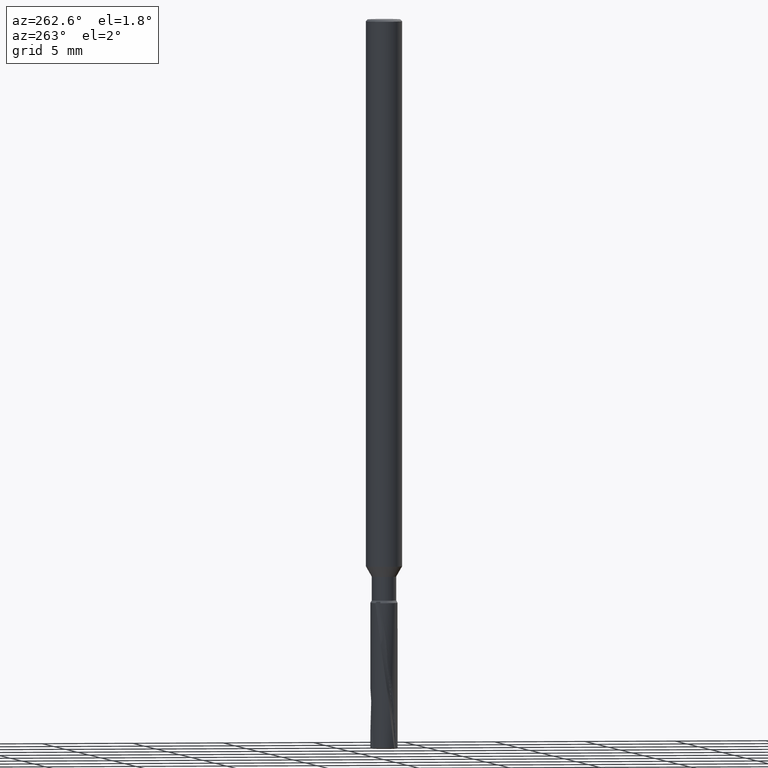
[diagram: clean part render]
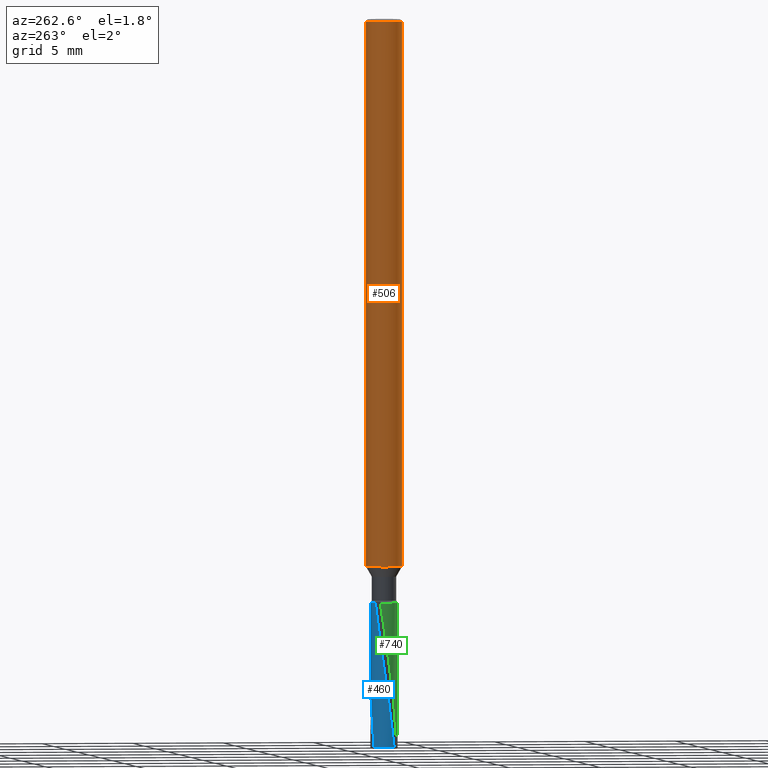
[diagram: same view with three faces highlighted in distinct colors, each labeled with its STEP entity id]
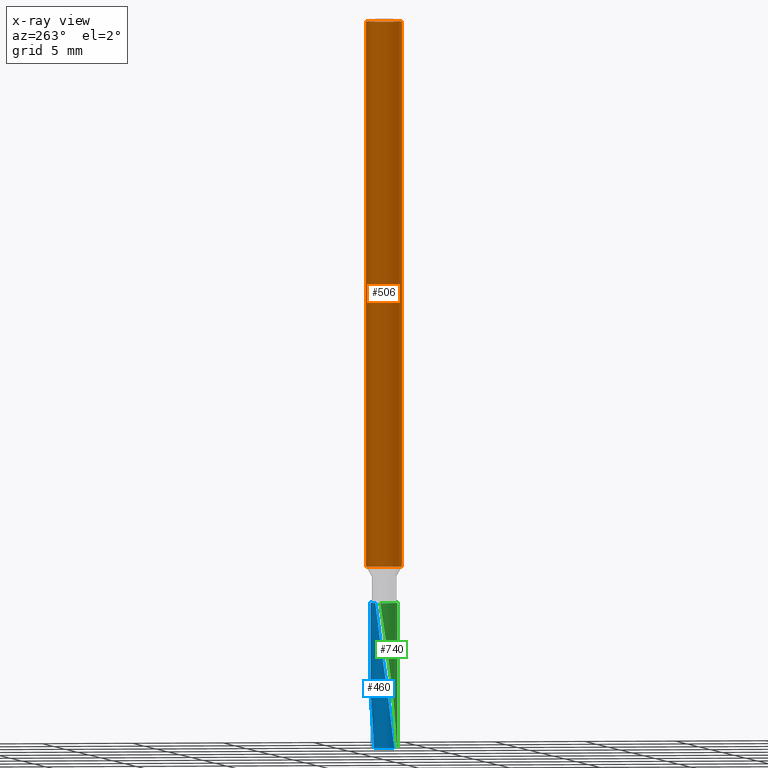
[diagram: x-ray of the same camera — body ghosted, the three highlighted faces saturated]
A machine part, auxiliary view with three faces highlighted in distinct colors.
The next image is the same camera in x-ray (body ghosted, the three faces saturated) — at least one of them is partly hidden behind the body in this view.
Their STEP definitions:

[orange] entity #506 — the highlighted cylindrical surface (edge-blend (fillet) strip) has radius 1 mm, axis along (-0, -0, 1).
#506=ADVANCED_FACE('',(#1311),#1312,.T.);
#538=VERTEX_POINT('',#1348);
#562=EDGE_CURVE('',#948,#778,#1374,.T.);
#642=EDGE_CURVE('',#538,#964,#1459,.T.);
#772=EDGE_CURVE('',#538,#948,#1601,.T.);
#778=VERTEX_POINT('',#1607);
#948=VERTEX_POINT('',#1792);
#964=VERTEX_POINT('',#1808);
#982=EDGE_CURVE('',#778,#964,#1830,.T.);
#1311=FACE_OUTER_BOUND('',#2507,.T.);
#1312=CYLINDRICAL_SURFACE('',#2508,1.0);
#1348=CARTESIAN_POINT('',(1.22460635382238E-016,-1.0,-30.0));
#1374=CIRCLE('',#2709,1.0);
#1459=CIRCLE('',#3170,1.0);
#1601=LINE('',#3689,#3690);
#1607=CARTESIAN_POINT('',(0.0,1.0,-0.100000000000001));
#1792=CARTESIAN_POINT('',(1.22460635382238E-016,-1.0,-0.100000000000001));
#1808=CARTESIAN_POINT('',(0.0,1.0,-30.0));
#1830=LINE('',#5029,#5030);
#2507=EDGE_LOOP('',(#6470,#6471,#6472,#6473));
#2508=AXIS2_PLACEMENT_3D('',#6474,#6475,#6476);
#2709=AXIS2_PLACEMENT_3D('',#6537,#6538,#6539);
#3170=AXIS2_PLACEMENT_3D('',#6613,#6614,#6615);
#3689=CARTESIAN_POINT('',(1.22460635382238E-016,-1.0,-15.05));
#3690=VECTOR('',#6775,1.0);
#5029=CARTESIAN_POINT('',(-1.22460635382238E-016,1.0,-15.05));
#5030=VECTOR('',#7005,1.0);
#6470=ORIENTED_EDGE('',*,*,#982,.T.);
#6471=ORIENTED_EDGE('',*,*,#642,.F.);
#6472=ORIENTED_EDGE('',*,*,#772,.T.);
#6473=ORIENTED_EDGE('',*,*,#562,.T.);
#6474=CARTESIAN_POINT('',(0.0,0.0,-15.05));
#6475=DIRECTION('',(-0.0,-0.0,1.0));
#6476=DIRECTION('',(0.0,1.0,0.0));
#6537=CARTESIAN_POINT('',(0.0,0.0,-0.100000000000001));
#6538=DIRECTION('',(0.0,0.0,-1.0));
#6539=DIRECTION('',(0.0,1.0,0.0));
#6613=CARTESIAN_POINT('',(0.0,0.0,-30.0));
#6614=DIRECTION('',(0.0,0.0,-1.0));
#6615=DIRECTION('',(0.0,1.0,0.0));
#6775=DIRECTION('',(-0.0,-0.0,1.0));
#7005=DIRECTION('',(0.0,0.0,-1.0));

[blue] entity #460 — the highlighted cylindrical surface (edge-blend (fillet) strip) has radius 0.75 mm, axis along (-0, -0, 1).
#460=ADVANCED_FACE('',(#1260),#1261,.T.);
#542=VERTEX_POINT('',#1352);
#606=VERTEX_POINT('',#1423);
#612=EDGE_CURVE('',#606,#666,#1429,.T.);
#630=VERTEX_POINT('',#1447);
#666=VERTEX_POINT('',#1485);
#944=EDGE_CURVE('',#542,#606,#1788,.T.);
#986=VERTEX_POINT('',#1834);
#1088=EDGE_CURVE('',#542,#630,#1946,.T.);
#1128=EDGE_CURVE('',#986,#630,#1991,.T.);
#1162=EDGE_CURVE('',#666,#986,#2027,.T.);
#1260=FACE_OUTER_BOUND('',#2287,.T.);
#1261=CYLINDRICAL_SURFACE('',#2288,0.75);
#1352=CARTESIAN_POINT('',(-0.56892957126261,-0.488691255234777,-39.925));
#1423=CARTESIAN_POINT('',(-0.516503033796683,0.543805678601118,-32.0));
#1429=CIRCLE('',#3030,0.75);
#1447=CARTESIAN_POINT('',(-0.435286454702541,0.61075830109176,-39.925));
#1485=CARTESIAN_POINT('',(-8.91600905325034E-017,0.75,-32.0));
#1788=B_SPLINE_CURVE_WITH_KNOTS('',3,(#4680,#4681,#4682,#4683,#4684,#4685,#4686,#4687,#4688,#4689,#4690,#4691,#4692,#4693,#4694,#4695),.UNSPECIFIED.,.F.,.F.,(4,2,2,2,2,2,2,4),(0.0,1.1201654244499,1.68234568276379,3.93333449691463,5.07927398892543,6.45954254706862,7.81062353789828,8.50698632800382),.UNSPECIFIED.);
#1834=CARTESIAN_POINT('',(-1.27846772113138E-016,0.75,-36.7157875568921));
#1946=CIRCLE('',#5589,0.75);
#1991=B_SPLINE_CURVE_WITH_KNOTS('',3,(#5704,#5705,#5706,#5707,#5708,#5709,#5710,#5711,#5712,#5713,#5714,#5715,#5716,#5717),.UNSPECIFIED.,.F.,.F.,(4,2,2,2,2,2,4),(0.0,0.576190026562851,1.46914405996578,3.29388078473572,5.79535644209188,6.41702304664912,8.27366812073367),.UNSPECIFIED.);
#2027=LINE('',#5896,#5897);
#2287=EDGE_LOOP('',(#6411,#6412,#6413,#6414,#6415));
#2288=AXIS2_PLACEMENT_3D('',#6416,#6417,#6418);
#3030=AXIS2_PLACEMENT_3D('',#6608,#6609,#6610);
#4680=CARTESIAN_POINT('',(-0.568929571262609,-0.488691255234777,-39.925));
#4681=CARTESIAN_POINT('',(-0.60365403670412,-0.448265372789897,-39.5554341565374));
#4682=CARTESIAN_POINT('',(-0.63398240502619,-0.404242947504845,-39.1850455292405));
#4683=CARTESIAN_POINT('',(-0.672156922228327,-0.333799226817966,-38.6304284459216));
#4684=CARTESIAN_POINT('',(-0.683639460887903,-0.309607846336325,-38.4463473240552));
#4685=CARTESIAN_POINT('',(-0.734622168573526,-0.18539797774088,-37.520345984562));
#4686=CARTESIAN_POINT('',(-0.753538369534079,-0.0785335452051468,-36.7837387215075));
#4687=CARTESIAN_POINT('',(-0.747377257706259,0.0830928327865541,-35.6655300667659));
#4688=CARTESIAN_POINT('',(-0.739363796858133,0.137126330181017,-35.2931153916679));
#4689=CARTESIAN_POINT('',(-0.709001811195628,0.253208064338187,-34.4656167468866));
#4690=CARTESIAN_POINT('',(-0.684955002950058,0.311918080898953,-34.0131266323485));
#4691=CARTESIAN_POINT('',(-0.624085166121449,0.42048590929699,-33.1591541658066));
#4692=CARTESIAN_POINT('',(-0.595772486105305,0.458219045494561,-32.8828243767435));
#4693=CARTESIAN_POINT('',(-0.546667850774513,0.514095667565736,-32.3562278595083));
#4694=CARTESIAN_POINT('',(-0.530642817884175,0.53037580527356,-32.1790093839607));
#4695=CARTESIAN_POINT('',(-0.516503033796683,0.543805678601118,-32.0));
#5589=AXIS2_PLACEMENT_3D('',#7099,#7100,#7101);
#5704=CARTESIAN_POINT('',(0.599960349432995,0.450052862570875,-32.0));
#5705=CARTESIAN_POINT('',(0.577794078934096,0.479602465517909,-32.1884775976877));
#5706=CARTESIAN_POINT('',(0.55537366431081,0.504957884625535,-32.3767859878527));
#5707=CARTESIAN_POINT('',(0.501003835265862,0.560098615580444,-32.8627400102003));
#5708=CARTESIAN_POINT('',(0.481830398684769,0.575990412536986,-33.0813570256982));
#5709=CARTESIAN_POINT('',(0.390098219087908,0.64519451999562,-33.9353677552111));
#5710=CARTESIAN_POINT('',(0.321948370941487,0.682586512597269,-34.4195475977096));
#5711=CARTESIAN_POINT('',(0.13322402751235,0.747025751583922,-35.8022130580687));
#5712=CARTESIAN_POINT('',(0.010546236887855,0.759457110901654,-36.6370115425194));
#5713=CARTESIAN_POINT('',(-0.137640085666006,0.737864308317737,-37.6684701306976));
#5714=CARTESIAN_POINT('',(-0.166765730438557,0.731824672339978,-37.8732932096482));
#5715=CARTESIAN_POINT('',(-0.280823659614288,0.701049826287731,-38.6919452682959));
#5716=CARTESIAN_POINT('',(-0.362252794731769,0.662809272590307,-39.3101530692377));
#5717=CARTESIAN_POINT('',(-0.435286454702541,0.61075830109176,-39.925));
#5896=CARTESIAN_POINT('',(-8.91600905325034E-017,0.75,-35.9625));
#5897=VECTOR('',#7181,1.0);
#6411=ORIENTED_EDGE('',*,*,#1162,.T.);
#6412=ORIENTED_EDGE('',*,*,#1128,.T.);
#6413=ORIENTED_EDGE('',*,*,#1088,.F.);
#6414=ORIENTED_EDGE('',*,*,#944,.T.);
#6415=ORIENTED_EDGE('',*,*,#612,.T.);
#6416=CARTESIAN_POINT('',(0.0,0.0,-35.9625));
#6417=DIRECTION('',(-0.0,-0.0,1.0));
#6418=DIRECTION('',(0.0,1.0,0.0));
#6608=CARTESIAN_POINT('',(0.0,0.0,-32.0));
#6609=DIRECTION('',(0.0,0.0,-1.0));
#6610=DIRECTION('',(0.0,1.0,0.0));
#7099=CARTESIAN_POINT('',(0.0,0.0,-39.925));
#7100=DIRECTION('',(0.0,0.0,-1.0));
#7101=DIRECTION('',(0.0,1.0,0.0));
#7181=DIRECTION('',(0.0,0.0,-1.0));

[green] entity #740 — the highlighted cylindrical surface (edge-blend (fillet) strip) has radius 0.75 mm, axis along (-0, -0, 1).
#524=VERTEX_POINT('',#1330);
#620=VERTEX_POINT('',#1437);
#646=EDGE_CURVE('',#692,#1182,#1464,.T.);
#650=EDGE_CURVE('',#620,#524,#1468,.T.);
#692=VERTEX_POINT('',#1512);
#740=ADVANCED_FACE('',(#1566),#1567,.T.);
#750=EDGE_CURVE('',#1182,#1016,#1577,.T.);
#766=EDGE_CURVE('',#620,#692,#1595,.T.);
#994=EDGE_CURVE('',#1016,#524,#1843,.T.);
#1016=VERTEX_POINT('',#1868);
#1182=VERTEX_POINT('',#2050);
#1330=CARTESIAN_POINT('',(-0.311288976966418,-0.682348278241545,-39.925));
#1437=CARTESIAN_POINT('',(9.92507719425328E-017,-0.75,-39.925));
#1464=B_SPLINE_CURVE_WITH_KNOTS('',3,(#3176,#3177,#3178,#3179,#3180,#3181,#3182,#3183,#3184,#3185,#3186,#3187,#3188,#3189,#3190,#3191),.UNSPECIFIED.,.F.,.F.,(4,2,2,2,2,2,2,4),(0.0,1.12016542444995,1.68066767132435,3.93167945623522,5.07817079740086,6.45896242235855,7.81053607627252,8.50797889938519),.UNSPECIFIED.);
#1468=CIRCLE('',#3198,0.75);
#1512=CARTESIAN_POINT('',(3.27182660161452E-010,-0.750000000000002,-33.5169074756923));
#1566=FACE_OUTER_BOUND('',#3602,.T.);
#1567=CYLINDRICAL_SURFACE('',#3603,0.75);
#1577=CIRCLE('',#3641,0.75);
#1595=LINE('',#3664,#3665);
#1843=B_SPLINE_CURVE_WITH_KNOTS('',3,(#5105,#5106,#5107,#5108,#5109,#5110,#5111,#5112,#5113,#5114,#5115,#5116,#5117,#5118),.UNSPECIFIED.,.F.,.F.,(4,2,2,2,2,2,4),(0.0,0.57619002627342,1.46914404403776,3.29388081788099,5.79535654896441,6.41702317207409,8.27366830158786),.UNSPECIFIED.);
#1868=CARTESIAN_POINT('',(-0.689737386748782,0.294554472586923,-32.0));
#2050=CARTESIAN_POINT('',(-0.212698015492462,-0.719207587700219,-32.0));
#3176=CARTESIAN_POINT('',(0.707683827271927,-0.24836183406022,-39.925));
#3177=CARTESIAN_POINT('',(0.690036218825012,-0.298647044487845,-39.5554341565374));
#3178=CARTESIAN_POINT('',(0.667075864352989,-0.346923394552614,-39.1850455292405));
#3179=CARTESIAN_POINT('',(0.62519888209939,-0.415137250523762,-38.6309816341396));
#3180=CARTESIAN_POINT('',(0.610038899838243,-0.437113456745812,-38.44744901907));
#3181=CARTESIAN_POINT('',(0.528043994105853,-0.543333981260784,-37.5220002613702));
#3182=CARTESIAN_POINT('',(0.444976838402386,-0.613174659449189,-36.7853962096245));
#3183=CARTESIAN_POINT('',(0.30192535792203,-0.688709705723679,-35.6670065710903));
#3184=CARTESIAN_POINT('',(0.251104980068545,-0.708809999167706,-35.2944018140368));
#3185=CARTESIAN_POINT('',(0.135351517342005,-0.740595127098685,-34.4665673655119));
#3186=CARTESIAN_POINT('',(0.0724636099529948,-0.749137460635037,-34.0139451511428));
#3187=CARTESIAN_POINT('',(-0.0520188876643985,-0.750723794787667,-33.159743603483));
#3188=CARTESIAN_POINT('',(-0.0988652874118552,-0.745074049844993,-32.8833167387578));
#3189=CARTESIAN_POINT('',(-0.171841155350514,-0.730487691251127,-32.3565871720683));
#3190=CARTESIAN_POINT('',(-0.193978391470459,-0.724743717947366,-32.1791924138013));
#3191=CARTESIAN_POINT('',(-0.212698015492462,-0.719207587700218,-32.0));
#3198=AXIS2_PLACEMENT_3D('',#6626,#6627,#6628);
#3602=EDGE_LOOP('',(#6731,#6732,#6733,#6734,#6735));
#3603=AXIS2_PLACEMENT_3D('',#6736,#6737,#6738);
#3641=AXIS2_PLACEMENT_3D('',#6742,#6743,#6744);
#3664=CARTESIAN_POINT('',(9.16534412081626E-017,-0.75,-35.9625));
#3665=VECTOR('',#6771,1.0);
#5105=CARTESIAN_POINT('',(-0.689737386748782,0.294554472586924,-32.0));
#5106=CARTESIAN_POINT('',(-0.70424495831592,0.260583117771268,-32.188477597593));
#5107=CARTESIAN_POINT('',(-0.714993188060992,0.22848875965178,-32.3767859873387));
#5108=CARTESIAN_POINT('',(-0.73556154717473,0.15383274157849,-32.862740006071));
#5109=CARTESIAN_POINT('',(-0.739737528666478,0.129282160394809,-33.0813570164845));
#5110=CARTESIAN_POINT('',(-0.753803954219296,0.0152377101324638,-33.9353677392201));
#5111=CARTESIAN_POINT('',(-0.752111445859045,-0.0624777861093266,-34.4195475825367));
#5112=CARTESIAN_POINT('',(-0.713555292559284,-0.258137481971706,-35.8022130457939));
#5113=CARTESIAN_POINT('',(-0.66298227029705,-0.370595245193934,-36.637011532968));
#5114=CARTESIAN_POINT('',(-0.570189193356058,-0.488131964182576,-37.6684701239466));
#5115=CARTESIAN_POINT('',(-0.550395892750011,-0.510335694561424,-37.8732932035124));
#5116=CARTESIAN_POINT('',(-0.466715129516386,-0.593725336048264,-38.6919452645945));
#5117=CARTESIAN_POINT('',(-0.392883270804134,-0.64512475901395,-39.3101530674071));
#5118=CARTESIAN_POINT('',(-0.311288976966419,-0.682348278241544,-39.925));
#6626=CARTESIAN_POINT('',(0.0,0.0,-39.925));
#6627=DIRECTION('',(0.0,0.0,-1.0));
#6628=DIRECTION('',(0.0,1.0,0.0));
#6731=ORIENTED_EDGE('',*,*,#766,.T.);
#6732=ORIENTED_EDGE('',*,*,#646,.T.);
#6733=ORIENTED_EDGE('',*,*,#750,.T.);
#6734=ORIENTED_EDGE('',*,*,#994,.T.);
#6735=ORIENTED_EDGE('',*,*,#650,.F.);
#6736=CARTESIAN_POINT('',(0.0,0.0,-35.9625));
#6737=DIRECTION('',(-0.0,-0.0,1.0));
#6738=DIRECTION('',(0.0,1.0,0.0));
#6742=CARTESIAN_POINT('',(0.0,0.0,-32.0));
#6743=DIRECTION('',(0.0,0.0,-1.0));
#6744=DIRECTION('',(0.0,1.0,0.0));
#6771=DIRECTION('',(-0.0,-0.0,1.0));